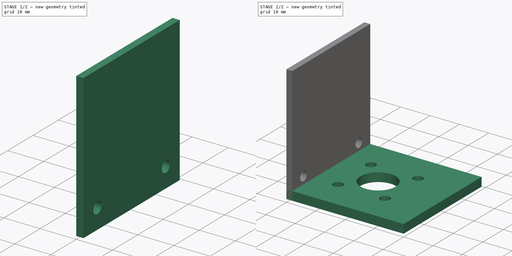
[diagram: build sequence overview — one tinted view per stage of 2, left to right]
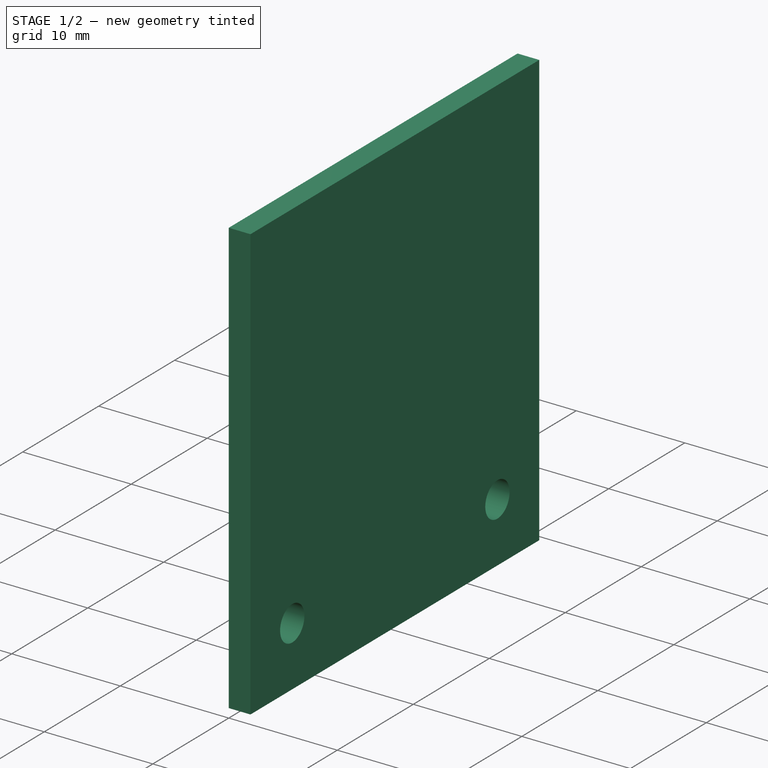
[diagram: stage 1 of 2 — iso view after this stage's code; geometry added in this stage tinted green]
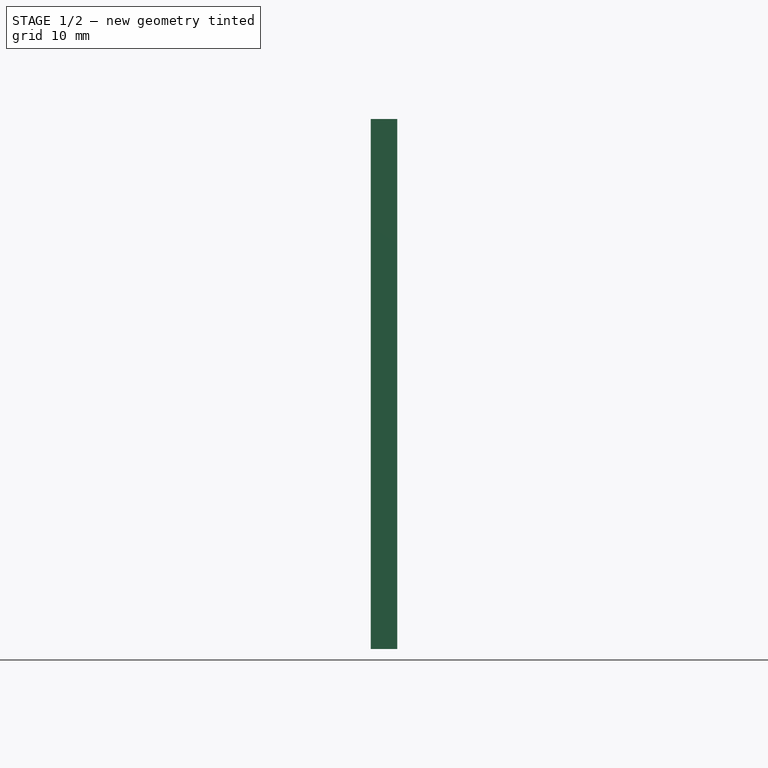
[diagram: stage 1 of 2 — front view after this stage's code; geometry added in this stage tinted green]
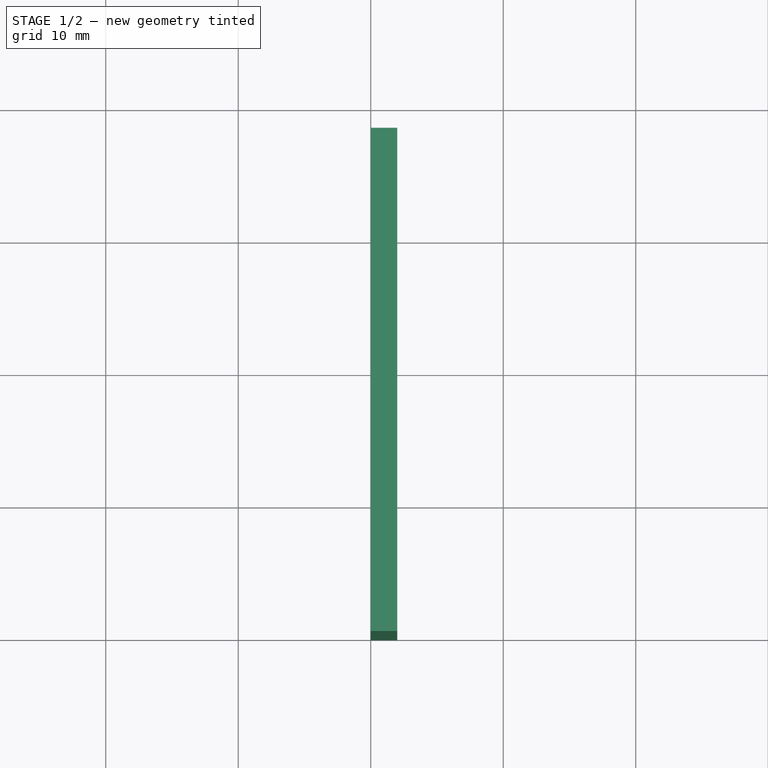
[diagram: stage 1 of 2 — top view after this stage's code; geometry added in this stage tinted green]
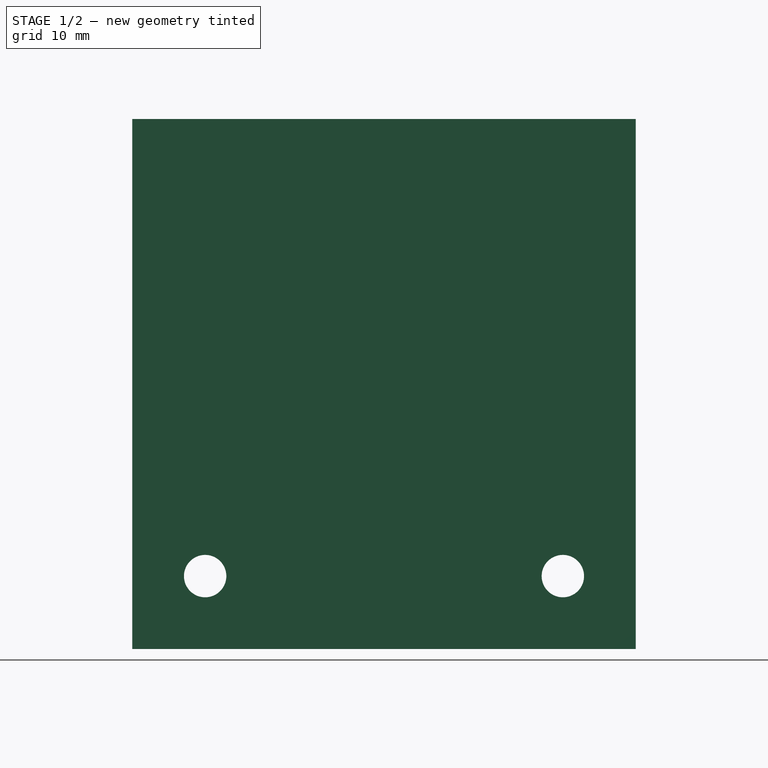
[diagram: stage 1 of 2 — right view after this stage's code; geometry added in this stage tinted green]
FCSTD DOCUMENT  (FreeCAD 0.16R)
Label: AngularSoporte_Motor
License: All rights reserved
LicenseURL: http://en.wikipedia.org/wiki/All_rights_reserved
objects: Sketcher::SketchObject×3, PartDesign::Pad×2, PartDesign::Pocket×1
note: 9 computed .brp shape members not serialized (recipe doc carries the construction recipe); baked Part::Feature solids carry a one-line shape summary decoded from their .brp

FEATURE [Sketcher::SketchObject] Sketch001
  sketch-geometry (4):
    g0: LineSegment StartX=0 StartY=38 StartZ=0 EndX=2 EndY=38 EndZ=0
    g1: LineSegment StartX=2 StartY=38 StartZ=0 EndX=2 EndY=0 EndZ=0
    g2: LineSegment StartX=2 StartY=0 StartZ=0 EndX=0 EndY=0 EndZ=0
    g3: LineSegment StartX=0 StartY=0 StartZ=0 EndX=0 EndY=38 EndZ=0
  constraints (12):
    c: Coincident(g0,g1)
    c: Coincident(g1,g2)
    c: Coincident(g2,g3)
    c: Coincident(g3,g0)
    c: Horizontal(g0)
    c: Horizontal(g2)
    c: Vertical(g1)
    c: Vertical(g3)
    c: PointOnObject(g0,g-2)
    c: PointOnObject(g1,g-1)
    c: DistanceY(g3,g3) = 38
    c: DistanceX(g0,g0) = 2
FEATURE [PartDesign::Pad] Pad001
  Length = 40
  Length2 = 100
  Sketch = -> Sketch001
  Type = 0
FEATURE [Sketcher::SketchObject] Sketch002
  Placement = pos=(0,0,0) rot=(0.57735,-0.57735,-0.57735;2.0944rad)
  Support = -> Pad001 [Face4]
  sketch-geometry (2):
    g0: Circle CenterX=-5.5 CenterY=5.5 CenterZ=0 NormalX=0 NormalY=0 NormalZ=1 Radius=1.6
    g1: Circle CenterX=-32.5 CenterY=5.5 CenterZ=0 NormalX=0 NormalY=0 NormalZ=1 Radius=1.6
  constraints (6):
    c: Radius(g0) = 1.6
    c: Equal(g1,g0)
    c: DistanceX(g1,g0) = 27
    c: DistanceY(g0,g1) = 0
    c: DistanceX(g0,g-1) = 5.5
    c: DistanceY(g-1,g0) = 5.5
FEATURE [PartDesign::Pocket] Pocket
  Length = 4
  Sketch = -> Sketch002
  Type = 0
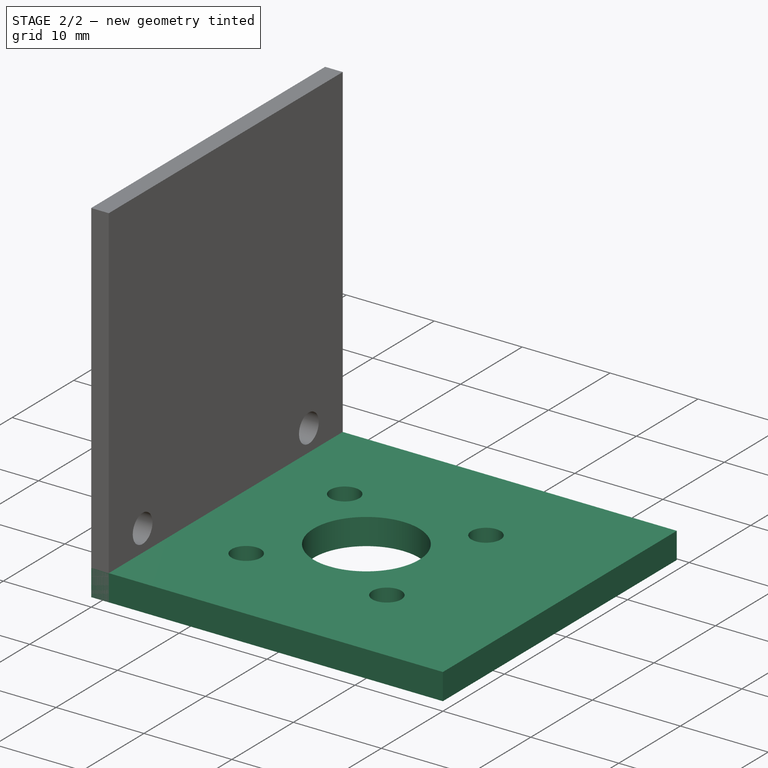
[diagram: stage 2 of 2 — iso view after this stage's code; geometry added in this stage tinted green]
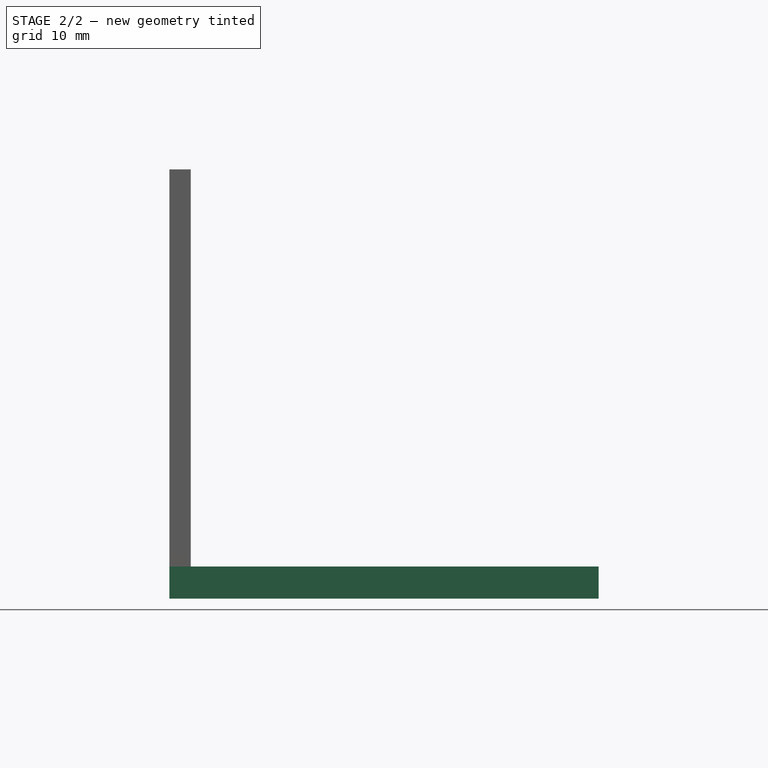
[diagram: stage 2 of 2 — front view after this stage's code; geometry added in this stage tinted green]
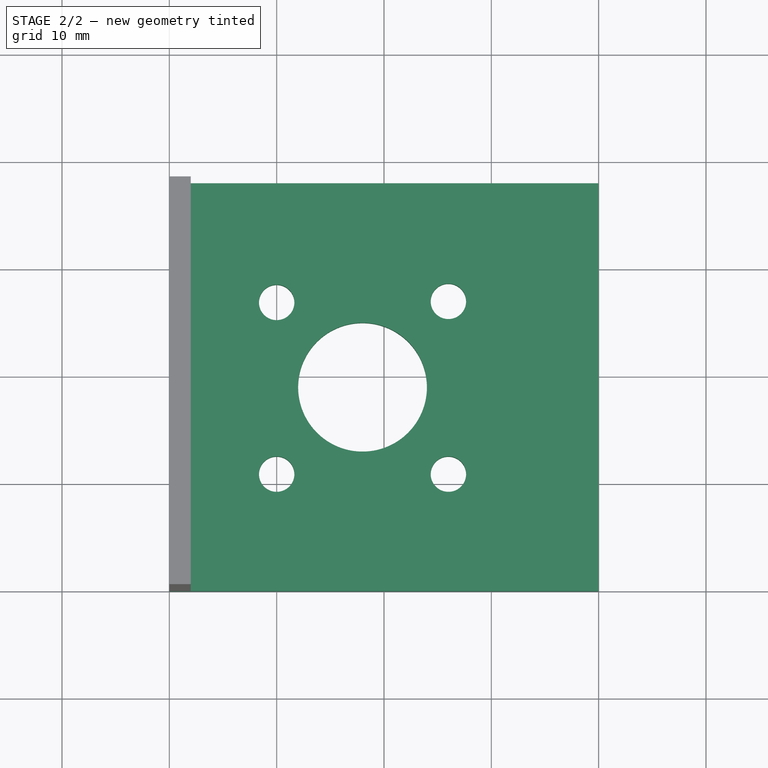
[diagram: stage 2 of 2 — top view after this stage's code; geometry added in this stage tinted green]
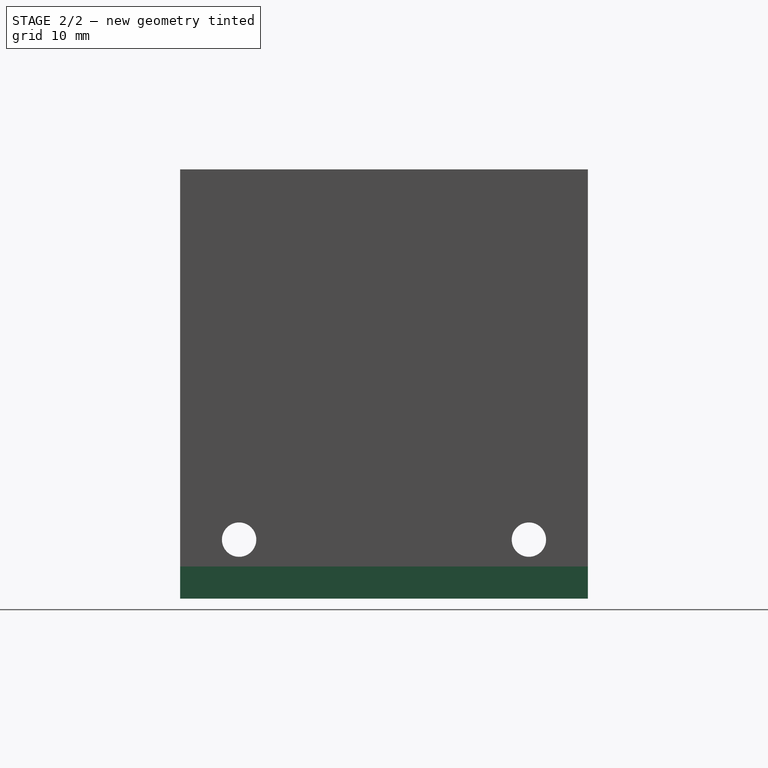
[diagram: stage 2 of 2 — right view after this stage's code; geometry added in this stage tinted green]
FEATURE [Sketcher::SketchObject] Sketch
  sketch-geometry (10):
    g0: LineSegment StartX=0 StartY=0 StartZ=0 EndX=40 EndY=0 EndZ=0
    g1: LineSegment StartX=40 StartY=0 StartZ=0 EndX=40 EndY=38 EndZ=0
    g2: LineSegment StartX=40 StartY=38 StartZ=0 EndX=0 EndY=38 EndZ=0
    g3: LineSegment StartX=0 StartY=38 StartZ=0 EndX=0 EndY=0 EndZ=0
    g4: GeomPoint [constr] X=18 Y=19 Z=0
    g5: Circle CenterX=18 CenterY=19 CenterZ=0 NormalX=0 NormalY=0 NormalZ=1 Radius=6
    g6: Circle CenterX=26 CenterY=27 CenterZ=0 NormalX=0 NormalY=0 NormalZ=1 Radius=1.65
    g7: Circle CenterX=10 CenterY=26.8997 CenterZ=0 NormalX=0 NormalY=0 NormalZ=1 Radius=1.65
    g8: Circle CenterX=10 CenterY=10.8997 CenterZ=0 NormalX=0 NormalY=0 NormalZ=1 Radius=1.65
    g9: Circle CenterX=26 CenterY=10.9 CenterZ=0 NormalX=0 NormalY=0 NormalZ=1 Radius=1.65
  constraints (21):
    c: Coincident(g0,g1)
    c: Coincident(g1,g2)
    c: Coincident(g2,g3)
    c: Coincident(g3,g0)
    c: Horizontal(g0)
    c: Horizontal(g2)
    c: Vertical(g3)
    c: Coincident(g0,g-1)
    c: DistanceY(g3,g3) = 38
    c: DistanceX(g2,g2) = 40
    c: Coincident(g5,g4)
    c: Radius(g5) = 6
    c: Distance(g4,g3) = 18
    c: Distance(g4,g0) = 19
    c: Radius(g6) = 1.65
    c: Equal(g7,g6)
    c: Equal(g6,g8)
    c: Equal(g8,g9)
    c: DistanceX(g8,g9) = 16
    c: DistanceX(g7,g4) = 8
    c: DistanceY(g8,g7) = 16
FEATURE [PartDesign::Pad] Pad
  Length = 3
  Length2 = 100
  Sketch = -> Sketch
  Type = 0
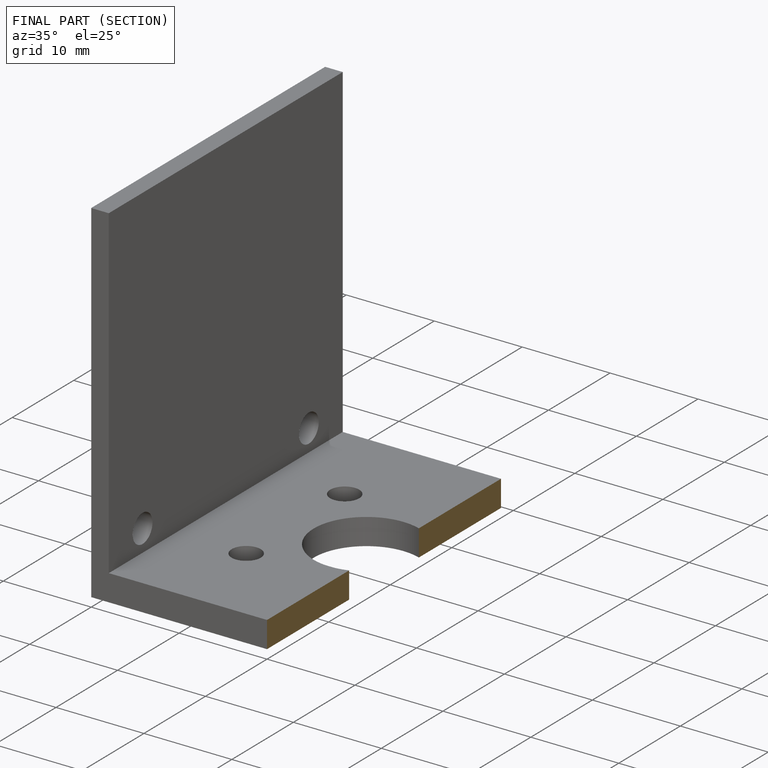
[diagram: finished part — half-section view (interior)]
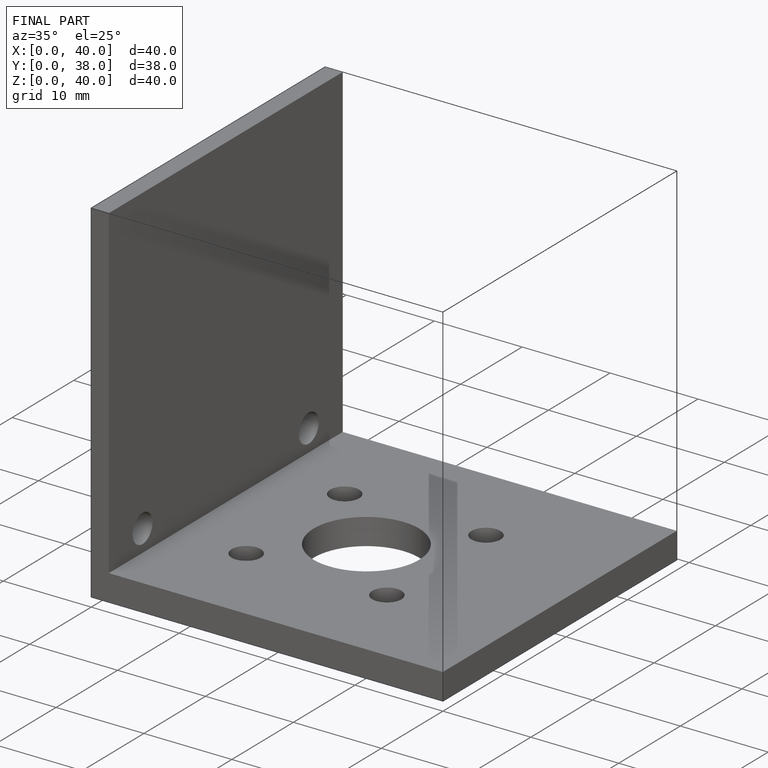
[diagram: finished part — iso view with bounding-box wireframe]
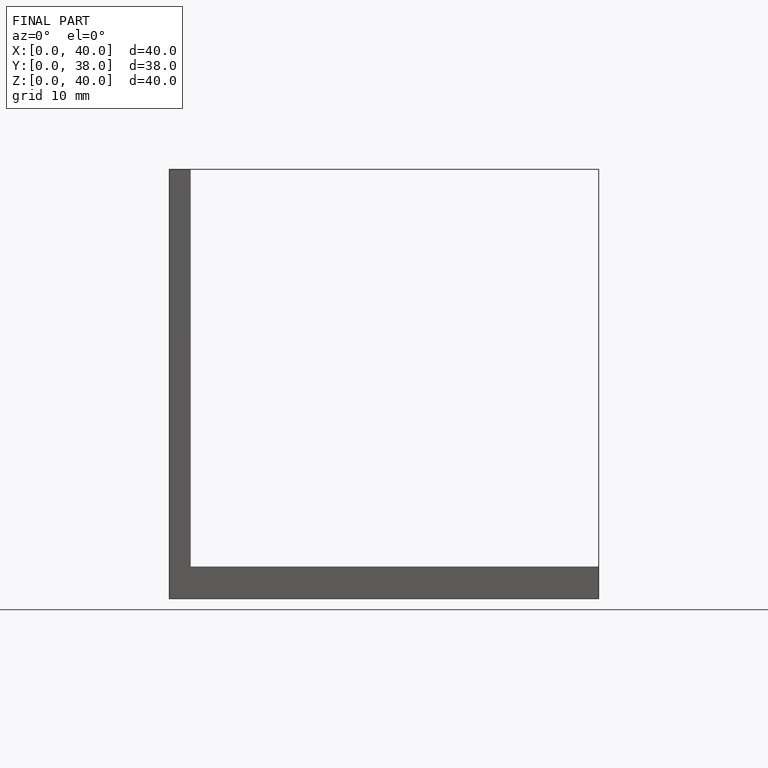
[diagram: finished part — front view with bounding-box wireframe]
